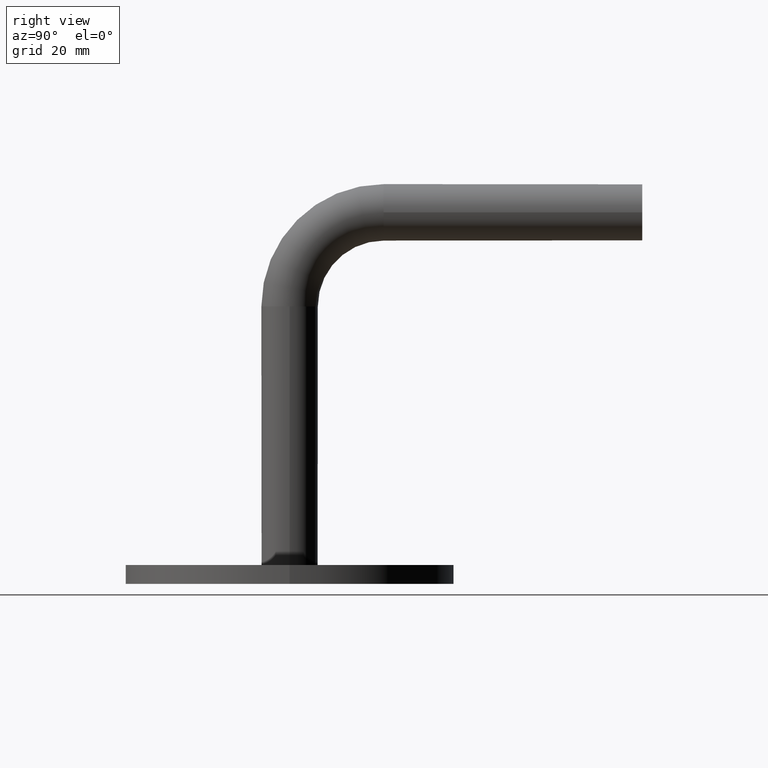
[diagram: clean part render]
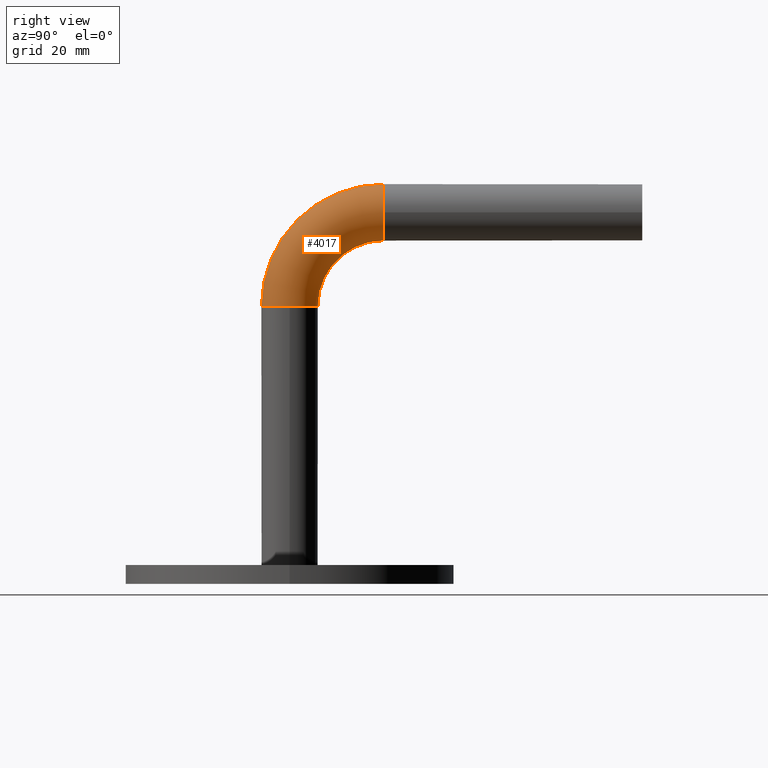
[diagram: same view with one face highlighted and labeled with its STEP entity id]
A machine part, right view. The second image highlights one B-rep face of the part: STEP entity #4017.
In plain terms, the highlighted toroidal blend (fillet) surface has major radius 20 mm and minor (blend) radius 6 mm.
Its self-contained STEP definition (entity closure, byte-faithful):
#216 = AXIS2_PLACEMENT_3D ( 'NONE', #1449, #242, #7856 ) ;
#242 = DIRECTION ( 'NONE',  ( -1.000000000000000000, -0.0000000000000000000, -0.0000000000000000000 ) ) ;
#958 = DIRECTION ( 'NONE',  ( -1.000000000000000000, 0.0000000000000000000, 0.0000000000000000000 ) ) ;
#1449 = CARTESIAN_POINT ( 'NONE',  ( 7.347880794884120700E-016, 20.00000000000000000, 59.00000000000000000 ) ) ;
#1577 = ORIENTED_EDGE ( 'NONE', *, *, #10950, .T. ) ;
#1612 = ORIENTED_EDGE ( 'NONE', *, *, #10628, .F. ) ;
#1706 = ORIENTED_EDGE ( 'NONE', *, *, #15525, .F. ) ;
#1972 = AXIS2_PLACEMENT_3D ( 'NONE', #3467, #4522, #13264 ) ;
#2114 = CARTESIAN_POINT ( 'NONE',  ( 0.0000000000000000000, 0.0000000000000000000, 59.00000000000000000 ) ) ;
#2188 = VERTEX_POINT ( 'NONE', #6352 ) ;
#3088 = CARTESIAN_POINT ( 'NONE',  ( 6.000000000000000900, 20.00000000000000400, 79.00000000000000000 ) ) ;
#3210 = CIRCLE ( 'NONE', #11559, 6.000000000000000900 ) ;
#3467 = CARTESIAN_POINT ( 'NONE',  ( 0.0000000000000000000, 20.00000000000000400, 79.00000000000000000 ) ) ;
#3540 = ORIENTED_EDGE ( 'NONE', *, *, #11697, .F. ) ;
#3784 = DIRECTION ( 'NONE',  ( 0.0000000000000000000, 0.0000000000000000000, -1.000000000000000000 ) ) ;
#3867 = AXIS2_PLACEMENT_3D ( 'NONE', #3895, #3784, #14949 ) ;
#3895 = CARTESIAN_POINT ( 'NONE',  ( 0.0000000000000000000, 0.0000000000000000000, 59.00000000000000000 ) ) ;
#4017 = ADVANCED_FACE ( 'NONE', ( #6901 ), #15932, .T. ) ;
#4088 = CIRCLE ( 'NONE', #9943, 6.000000000000000900 ) ;
#4467 = DIRECTION ( 'NONE',  ( -1.000000000000000000, 0.0000000000000000000, 0.0000000000000000000 ) ) ;
#4522 = DIRECTION ( 'NONE',  ( 0.0000000000000000000, -1.000000000000000000, 1.608122649676636600E-016 ) ) ;
#5387 = CARTESIAN_POINT ( 'NONE',  ( 0.0000000000000000000, 20.00000000000000000, 59.00000000000000000 ) ) ;
#5760 = CIRCLE ( 'NONE', #3867, 6.000000000000000900 ) ;
#5894 = EDGE_LOOP ( 'NONE', ( #1706, #1612, #3540, #13901, #16128, #1577 ) ) ;
#5901 = CARTESIAN_POINT ( 'NONE',  ( 0.0000000000000000000, 20.00000000000000000, 59.00000000000000000 ) ) ;
#5997 = EDGE_CURVE ( 'NONE', #13467, #9492, #3210, .T. ) ;
#6229 = VERTEX_POINT ( 'NONE', #15408 ) ;
#6352 = CARTESIAN_POINT ( 'NONE',  ( 6.000000000000000900, 7.347880794884120700E-016, 59.00000000000000000 ) ) ;
#6598 = DIRECTION ( 'NONE',  ( 0.0000000000000000000, 0.0000000000000000000, 1.000000000000000000 ) ) ;
#6618 = VERTEX_POINT ( 'NONE', #14060 ) ;
#6793 = CARTESIAN_POINT ( 'NONE',  ( 0.0000000000000000000, -6.000000000000001800, 59.00000000000000000 ) ) ;
#6901 = FACE_OUTER_BOUND ( 'NONE', #5894, .T. ) ;
#7045 = CIRCLE ( 'NONE', #1972, 6.000000000000000900 ) ;
#7046 = DIRECTION ( 'NONE',  ( 0.0000000000000000000, 0.0000000000000000000, 1.000000000000000000 ) ) ;
#7856 = DIRECTION ( 'NONE',  ( 0.0000000000000000000, 0.0000000000000000000, 1.000000000000000000 ) ) ;
#8235 = DIRECTION ( 'NONE',  ( -1.000000000000000000, -0.0000000000000000000, -0.0000000000000000000 ) ) ;
#8261 = DIRECTION ( 'NONE',  ( 0.0000000000000000000, 0.0000000000000000000, -1.000000000000000000 ) ) ;
#8836 = AXIS2_PLACEMENT_3D ( 'NONE', #5901, #14634, #7046 ) ;
#9492 = VERTEX_POINT ( 'NONE', #3088 ) ;
#9943 = AXIS2_PLACEMENT_3D ( 'NONE', #2114, #8261, #4467 ) ;
#10628 = EDGE_CURVE ( 'NONE', #2188, #16065, #4088, .T. ) ;
#10811 = CARTESIAN_POINT ( 'NONE',  ( 0.0000000000000000000, 20.00000000000000400, 79.00000000000000000 ) ) ;
#10950 = EDGE_CURVE ( 'NONE', #9492, #6618, #7045, .T. ) ;
#11559 = AXIS2_PLACEMENT_3D ( 'NONE', #10811, #16017, #958 ) ;
#11697 = EDGE_CURVE ( 'NONE', #6229, #2188, #5760, .T. ) ;
#12758 = CARTESIAN_POINT ( 'NONE',  ( 7.347880794884114800E-016, 20.00000000000000400, 73.00000000000000000 ) ) ;
#12942 = CIRCLE ( 'NONE', #216, 13.99999999999999800 ) ;
#12953 = EDGE_CURVE ( 'NONE', #6229, #13467, #12942, .T. ) ;
#13264 = DIRECTION ( 'NONE',  ( -1.000000000000000000, 0.0000000000000000000, 0.0000000000000000000 ) ) ;
#13297 = CIRCLE ( 'NONE', #8836, 25.99999999999999600 ) ;
#13467 = VERTEX_POINT ( 'NONE', #12758 ) ;
#13901 = ORIENTED_EDGE ( 'NONE', *, *, #12953, .T. ) ;
#14060 = CARTESIAN_POINT ( 'NONE',  ( 0.0000000000000000000, 20.00000000000000400, 84.99999999999998600 ) ) ;
#14634 = DIRECTION ( 'NONE',  ( -1.000000000000000000, -0.0000000000000000000, -0.0000000000000000000 ) ) ;
#14949 = DIRECTION ( 'NONE',  ( -1.000000000000000000, 0.0000000000000000000, 0.0000000000000000000 ) ) ;
#15130 = AXIS2_PLACEMENT_3D ( 'NONE', #5387, #8235, #6598 ) ;
#15408 = CARTESIAN_POINT ( 'NONE',  ( 7.347880794884119700E-016, 6.000000000000000900, 59.00000000000000000 ) ) ;
#15525 = EDGE_CURVE ( 'NONE', #16065, #6618, #13297, .T. ) ;
#15932 = TOROIDAL_SURFACE ( 'NONE', #15130, 20.00000000000000000, 6.000000000000000900 ) ;
#16017 = DIRECTION ( 'NONE',  ( 0.0000000000000000000, -1.000000000000000000, 1.608122649676636600E-016 ) ) ;
#16065 = VERTEX_POINT ( 'NONE', #6793 ) ;
#16128 = ORIENTED_EDGE ( 'NONE', *, *, #5997, .T. ) ;